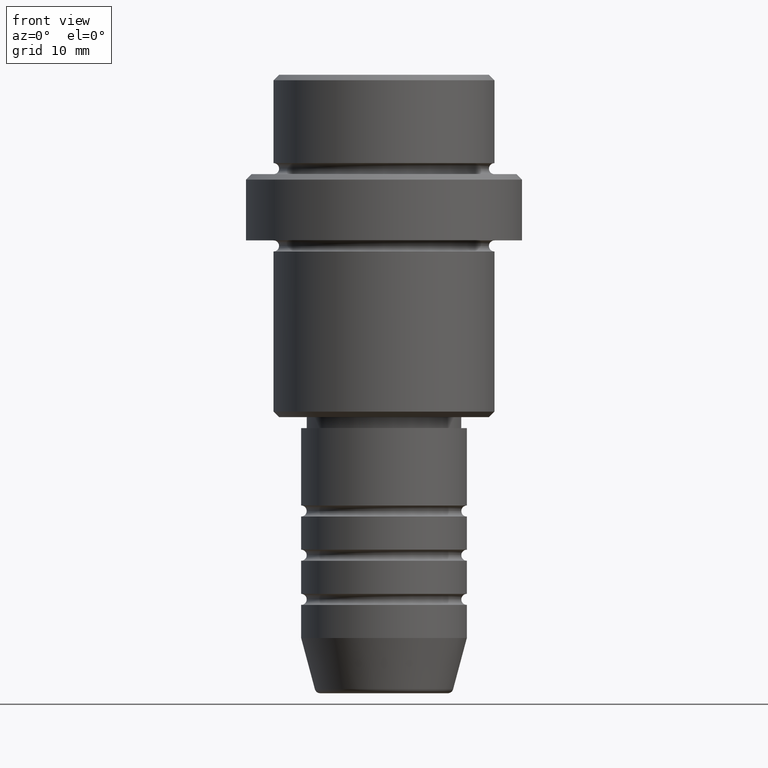
[diagram: clean part render]
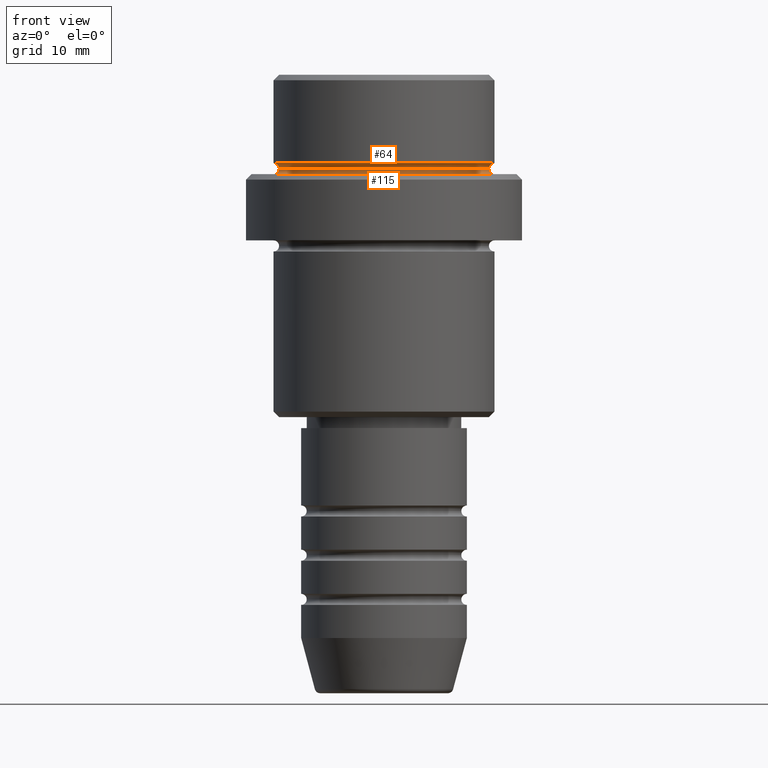
[diagram: same view with one multi-face feature highlighted, each face labeled with its STEP entity id]
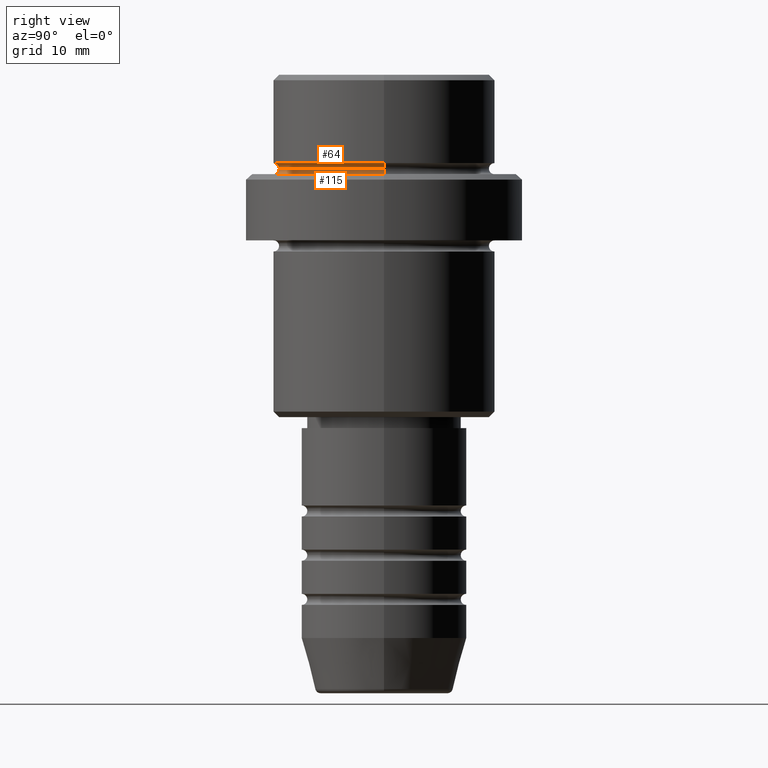
[diagram: same view with one multi-face feature highlighted, each face labeled with its STEP entity id]
A machine part, front view. The highlighted faces form ONE feature: a constant-radius fillet chain: 2 tangent blend faces with common blend radius 0.5 mm. The faces share edges in the B-rep.
A second angle (right view) of the same feature is appended — it is thin or edge-on in the first view.
Their STEP definitions:
[1] entity #64 (Torus):
#6 = ORIENTED_EDGE ( 'NONE', *, *, #122, .T. ) ;
#32 = DIRECTION ( 'NONE',  ( -0.000000000000000000, -0.000000000000000000, 1.000000000000000000 ) ) ;
#58 = VERTEX_POINT ( 'NONE', #1237 ) ;
#64 = ADVANCED_FACE ( 'NONE', ( #264 ), #733, .F. ) ;
#74 = AXIS2_PLACEMENT_3D ( 'NONE', #1059, #951, #589 ) ;
#122 = EDGE_CURVE ( 'NONE', #58, #1053, #1211, .T. ) ;
#165 = CARTESIAN_POINT ( 'NONE',  ( -9.999999999999994671, 0.000000000000000000, -8.499999999999998224 ) ) ;
#176 = AXIS2_PLACEMENT_3D ( 'NONE', #1248, #32, #1137 ) ;
#179 = CARTESIAN_POINT ( 'NONE',  ( 9.999999999999998224, 0.000000000000000000, -7.999999999999998224 ) ) ;
#264 = FACE_OUTER_BOUND ( 'NONE', #514, .T. ) ;
#276 = VERTEX_POINT ( 'NONE', #599 ) ;
#277 = DIRECTION ( 'NONE',  ( -0.000000000000000000, -1.000000000000000000, -0.000000000000000000 ) ) ;
#326 = CIRCLE ( 'NONE', #1412, 0.5000000000000004441 ) ;
#354 = CARTESIAN_POINT ( 'NONE',  ( 0.000000000000000000, 0.000000000000000000, -8.499999999999998224 ) ) ;
#447 = DIRECTION ( 'NONE',  ( 0.000000000000000000, 0.000000000000000000, -1.000000000000000000 ) ) ;
#470 = DIRECTION ( 'NONE',  ( 0.000000000000000000, 0.000000000000000000, -1.000000000000000000 ) ) ;
#495 = ORIENTED_EDGE ( 'NONE', *, *, #1020, .T. ) ;
#514 = EDGE_LOOP ( 'NONE', ( #6, #495, #1064, #1046 ) ) ;
#531 = CIRCLE ( 'NONE', #571, 0.5000000000000004441 ) ;
#551 = CIRCLE ( 'NONE', #176, 9.999999999999998224 ) ;
#571 = AXIS2_PLACEMENT_3D ( 'NONE', #165, #277, #470 ) ;
#583 = EDGE_CURVE ( 'NONE', #276, #1258, #551, .T. ) ;
#584 = DIRECTION ( 'NONE',  ( -1.224646799147353207E-16, 1.000000000000000000, 0.000000000000000000 ) ) ;
#589 = DIRECTION ( 'NONE',  ( 1.000000000000000000, 0.000000000000000000, 0.000000000000000000 ) ) ;
#599 = CARTESIAN_POINT ( 'NONE',  ( -9.999999999999998224, 1.224646799147353059E-15, -7.999999999999998224 ) ) ;
#677 = AXIS2_PLACEMENT_3D ( 'NONE', #354, #447, #1215 ) ;
#733 = TOROIDAL_SURFACE ( 'NONE', #677, 9.999999999999994671, 0.5000000000000000000 ) ;
#775 = EDGE_CURVE ( 'NONE', #58, #276, #531, .T. ) ;
#951 = DIRECTION ( 'NONE',  ( -0.000000000000000000, -0.000000000000000000, 1.000000000000000000 ) ) ;
#981 = DIRECTION ( 'NONE',  ( -1.000000000000000000, -1.224646799147353454E-16, 0.000000000000000000 ) ) ;
#1020 = EDGE_CURVE ( 'NONE', #1053, #1258, #326, .T. ) ;
#1046 = ORIENTED_EDGE ( 'NONE', *, *, #775, .F. ) ;
#1053 = VERTEX_POINT ( 'NONE', #1242 ) ;
#1059 = CARTESIAN_POINT ( 'NONE',  ( 0.000000000000000000, 0.000000000000000000, -8.500000000000000000 ) ) ;
#1064 = ORIENTED_EDGE ( 'NONE', *, *, #583, .F. ) ;
#1137 = DIRECTION ( 'NONE',  ( 1.000000000000000000, 0.000000000000000000, 0.000000000000000000 ) ) ;
#1211 = CIRCLE ( 'NONE', #74, 9.499999999999994671 ) ;
#1215 = DIRECTION ( 'NONE',  ( -1.000000000000000000, 0.000000000000000000, 0.000000000000000000 ) ) ;
#1237 = CARTESIAN_POINT ( 'NONE',  ( -9.499999999999994671, 1.194030629168668681E-15, -8.500000000000000000 ) ) ;
#1242 = CARTESIAN_POINT ( 'NONE',  ( 9.499999999999994671, 0.000000000000000000, -8.500000000000000000 ) ) ;
#1248 = CARTESIAN_POINT ( 'NONE',  ( 0.000000000000000000, 0.000000000000000000, -7.999999999999998224 ) ) ;
#1258 = VERTEX_POINT ( 'NONE', #179 ) ;
#1317 = CARTESIAN_POINT ( 'NONE',  ( 9.999999999999994671, 1.224646799147352665E-15, -8.499999999999998224 ) ) ;
#1412 = AXIS2_PLACEMENT_3D ( 'NONE', #1317, #584, #981 ) ;
[2] entity #115 (Torus):
#12 = DIRECTION ( 'NONE',  ( 0.000000000000000000, 0.000000000000000000, -1.000000000000000000 ) ) ;
#26 = ORIENTED_EDGE ( 'NONE', *, *, #670, .T. ) ;
#33 = DIRECTION ( 'NONE',  ( 1.000000000000000000, 0.000000000000000000, 0.000000000000000000 ) ) ;
#58 = VERTEX_POINT ( 'NONE', #1237 ) ;
#66 = CARTESIAN_POINT ( 'NONE',  ( -9.999999999999994671, 1.224646799147352665E-15, -8.500000000000000000 ) ) ;
#74 = AXIS2_PLACEMENT_3D ( 'NONE', #1059, #951, #589 ) ;
#75 = EDGE_CURVE ( 'NONE', #1212, #386, #1078, .T. ) ;
#115 = ADVANCED_FACE ( 'NONE', ( #819 ), #754, .F. ) ;
#122 = EDGE_CURVE ( 'NONE', #58, #1053, #1211, .T. ) ;
#242 = CIRCLE ( 'NONE', #510, 0.5000000000000004441 ) ;
#254 = DIRECTION ( 'NONE',  ( 1.224646799147353207E-16, 1.000000000000000000, 0.000000000000000000 ) ) ;
#256 = CARTESIAN_POINT ( 'NONE',  ( 9.999999999999994671, 0.000000000000000000, -8.500000000000000000 ) ) ;
#386 = VERTEX_POINT ( 'NONE', #1260 ) ;
#388 = AXIS2_PLACEMENT_3D ( 'NONE', #932, #1385, #1278 ) ;
#398 = DIRECTION ( 'NONE',  ( -1.000000000000000000, 1.224646799147353454E-16, 0.000000000000000000 ) ) ;
#415 = AXIS2_PLACEMENT_3D ( 'NONE', #1229, #471, #33 ) ;
#471 = DIRECTION ( 'NONE',  ( 0.000000000000000000, 0.000000000000000000, -1.000000000000000000 ) ) ;
#485 = CARTESIAN_POINT ( 'NONE',  ( 9.999999999999994671, 0.000000000000000000, -9.000000000000001776 ) ) ;
#486 = ORIENTED_EDGE ( 'NONE', *, *, #1096, .F. ) ;
#497 = ORIENTED_EDGE ( 'NONE', *, *, #75, .F. ) ;
#507 = AXIS2_PLACEMENT_3D ( 'NONE', #66, #254, #398 ) ;
#510 = AXIS2_PLACEMENT_3D ( 'NONE', #256, #654, #12 ) ;
#589 = DIRECTION ( 'NONE',  ( 1.000000000000000000, 0.000000000000000000, 0.000000000000000000 ) ) ;
#654 = DIRECTION ( 'NONE',  ( 0.000000000000000000, -1.000000000000000000, 0.000000000000000000 ) ) ;
#670 = EDGE_CURVE ( 'NONE', #58, #386, #1268, .T. ) ;
#754 = TOROIDAL_SURFACE ( 'NONE', #388, 9.999999999999994671, 0.5000000000000000000 ) ;
#819 = FACE_OUTER_BOUND ( 'NONE', #823, .T. ) ;
#823 = EDGE_LOOP ( 'NONE', ( #1275, #26, #497, #486 ) ) ;
#932 = CARTESIAN_POINT ( 'NONE',  ( 0.000000000000000000, 0.000000000000000000, -8.500000000000000000 ) ) ;
#951 = DIRECTION ( 'NONE',  ( -0.000000000000000000, -0.000000000000000000, 1.000000000000000000 ) ) ;
#1053 = VERTEX_POINT ( 'NONE', #1242 ) ;
#1059 = CARTESIAN_POINT ( 'NONE',  ( 0.000000000000000000, 0.000000000000000000, -8.500000000000000000 ) ) ;
#1078 = CIRCLE ( 'NONE', #415, 9.999999999999994671 ) ;
#1096 = EDGE_CURVE ( 'NONE', #1053, #1212, #242, .T. ) ;
#1211 = CIRCLE ( 'NONE', #74, 9.499999999999994671 ) ;
#1212 = VERTEX_POINT ( 'NONE', #485 ) ;
#1229 = CARTESIAN_POINT ( 'NONE',  ( 0.000000000000000000, 0.000000000000000000, -9.000000000000001776 ) ) ;
#1237 = CARTESIAN_POINT ( 'NONE',  ( -9.499999999999994671, 1.194030629168668681E-15, -8.500000000000000000 ) ) ;
#1242 = CARTESIAN_POINT ( 'NONE',  ( 9.499999999999994671, 0.000000000000000000, -8.500000000000000000 ) ) ;
#1260 = CARTESIAN_POINT ( 'NONE',  ( -9.999999999999994671, 1.224646799147352665E-15, -9.000000000000001776 ) ) ;
#1268 = CIRCLE ( 'NONE', #507, 0.5000000000000004441 ) ;
#1275 = ORIENTED_EDGE ( 'NONE', *, *, #122, .F. ) ;
#1278 = DIRECTION ( 'NONE',  ( 1.000000000000000000, 0.000000000000000000, 0.000000000000000000 ) ) ;
#1385 = DIRECTION ( 'NONE',  ( -0.000000000000000000, -0.000000000000000000, 1.000000000000000000 ) ) ;